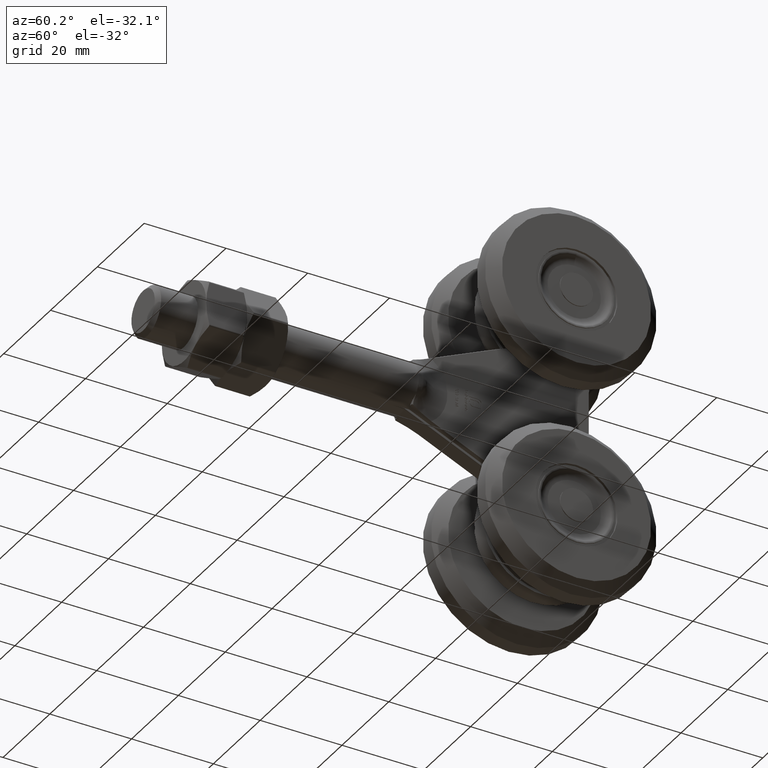
[diagram: clean part render]
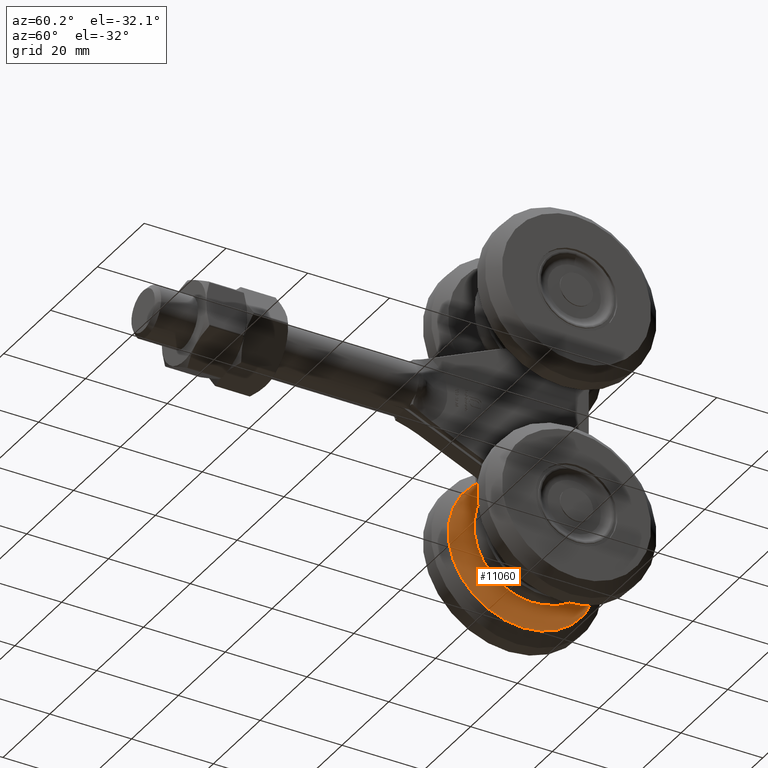
[diagram: same view with one face highlighted and labeled with its STEP entity id]
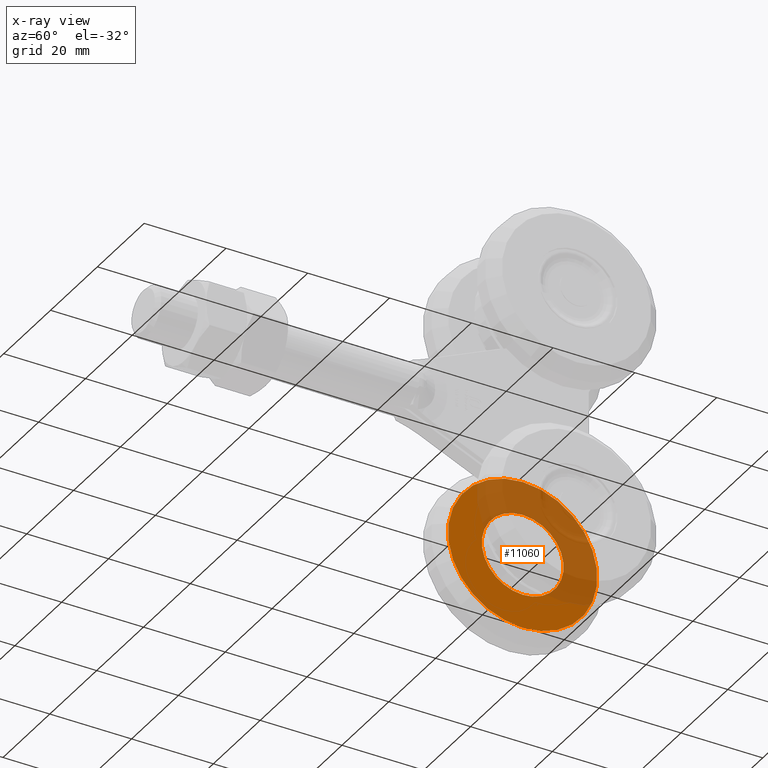
[diagram: x-ray of the same camera — body ghosted, the highlighted face saturated]
A machine part, auxiliary view. The second image highlights one B-rep face of the part: STEP entity #11060.
The next image is the same camera in x-ray: the body ghosted, the highlighted face saturated — about 49% of this face is hidden behind the body in this view.
In plain terms, the highlighted planar face has unit normal (-1, 0, 0).
Its self-contained STEP definition (entity closure, byte-faithful):
#266 = EDGE_LOOP ( 'NONE', ( #11719 ) ) ;
#472 = CARTESIAN_POINT ( 'NONE',  ( -7.249999999999993783, 44.00000000000001421, -27.00000000000000000 ) ) ;
#1656 = CARTESIAN_POINT ( 'NONE',  ( -7.249999999999994671, 34.00000000000000000, -27.00000000000000000 ) ) ;
#4330 = ORIENTED_EDGE ( 'NONE', *, *, #5739, .F. ) ;
#5064 = AXIS2_PLACEMENT_3D ( 'NONE', #472, #14164, #10780 ) ;
#5739 = EDGE_CURVE ( 'NONE', #9575, #9575, #6547, .T. ) ;
#6161 = PLANE ( 'NONE',  #5064 ) ;
#6547 = CIRCLE ( 'NONE', #9985, 10.00000000000000533 ) ;
#7465 = CIRCLE ( 'NONE', #14772, 18.25000000000001421 ) ;
#8840 = EDGE_LOOP ( 'NONE', ( #4330 ) ) ;
#9575 = VERTEX_POINT ( 'NONE', #19649 ) ;
#9985 = AXIS2_PLACEMENT_3D ( 'NONE', #1656, #15416, #12417 ) ;
#10301 = VERTEX_POINT ( 'NONE', #15497 ) ;
#10780 = DIRECTION ( 'NONE',  ( 0.000000000000000000, 0.000000000000000000, 1.000000000000000000 ) ) ;
#11060 = ADVANCED_FACE ( 'NONE', ( #14790, #15964 ), #6161, .F. ) ;
#11337 = DIRECTION ( 'NONE',  ( 0.000000000000000000, 0.000000000000000000, -1.000000000000000000 ) ) ;
#11719 = ORIENTED_EDGE ( 'NONE', *, *, #12127, .T. ) ;
#12127 = EDGE_CURVE ( 'NONE', #10301, #10301, #7465, .T. ) ;
#12417 = DIRECTION ( 'NONE',  ( 0.000000000000000000, 0.000000000000000000, -1.000000000000000000 ) ) ;
#12596 = DIRECTION ( 'NONE',  ( 1.000000000000000000, -0.000000000000000000, -0.000000000000000000 ) ) ;
#14164 = DIRECTION ( 'NONE',  ( -1.000000000000000000, 0.000000000000000000, 0.000000000000000000 ) ) ;
#14772 = AXIS2_PLACEMENT_3D ( 'NONE', #18854, #12596, #11337 ) ;
#14790 = FACE_BOUND ( 'NONE', #8840, .T. ) ;
#15416 = DIRECTION ( 'NONE',  ( 1.000000000000000000, -0.000000000000000000, -0.000000000000000000 ) ) ;
#15497 = CARTESIAN_POINT ( 'NONE',  ( -7.249999999999992895, 34.00000000000000000, -45.25000000000001421 ) ) ;
#15964 = FACE_OUTER_BOUND ( 'NONE', #266, .T. ) ;
#18854 = CARTESIAN_POINT ( 'NONE',  ( -7.249999999999992895, 34.00000000000000000, -27.00000000000000000 ) ) ;
#19649 = CARTESIAN_POINT ( 'NONE',  ( -7.249999999999994671, 34.00000000000000000, -37.00000000000000711 ) ) ;